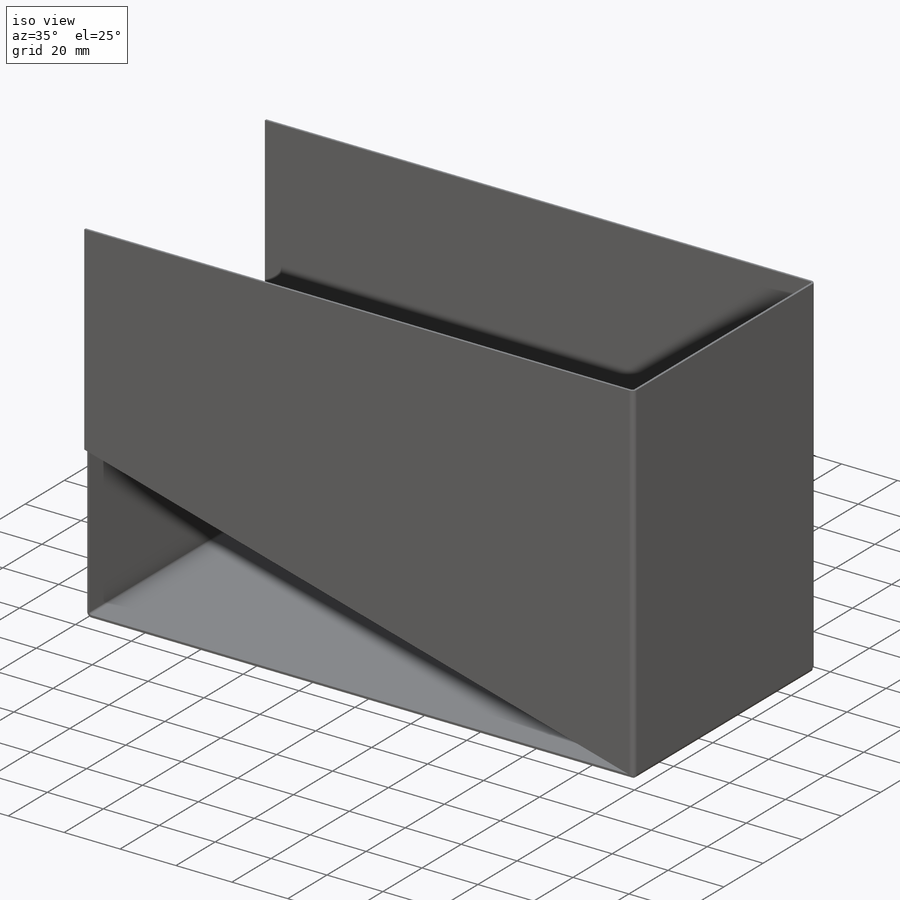
[diagram: iso view]
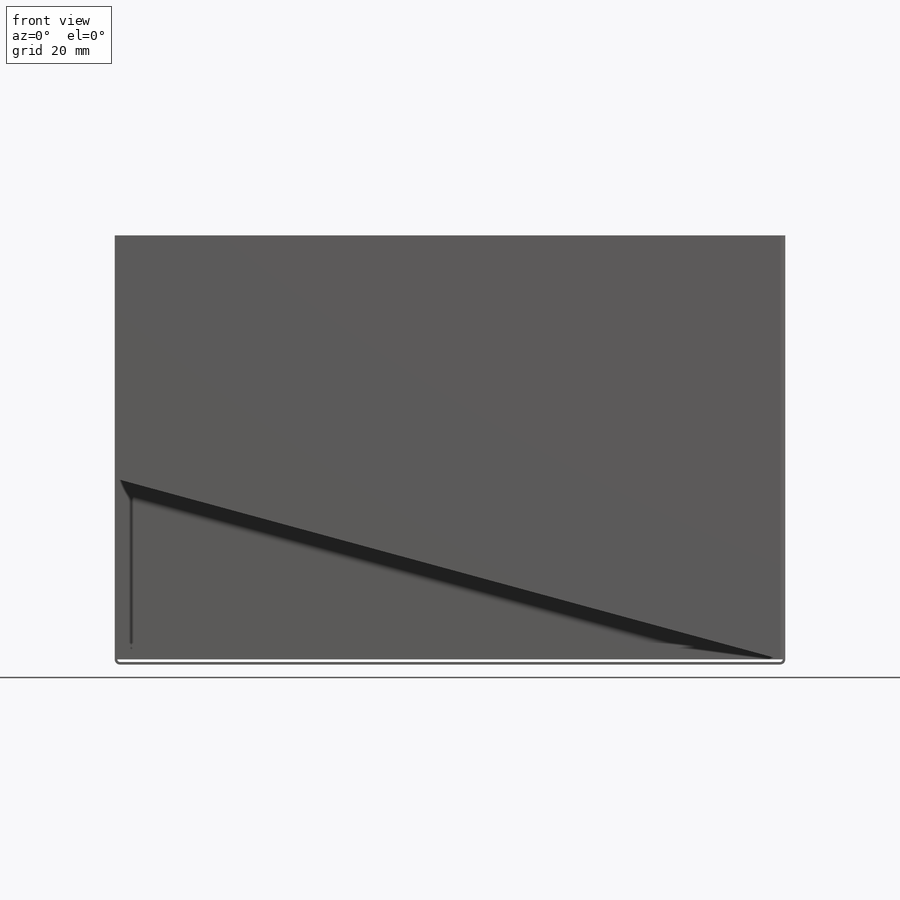
[diagram: front view]
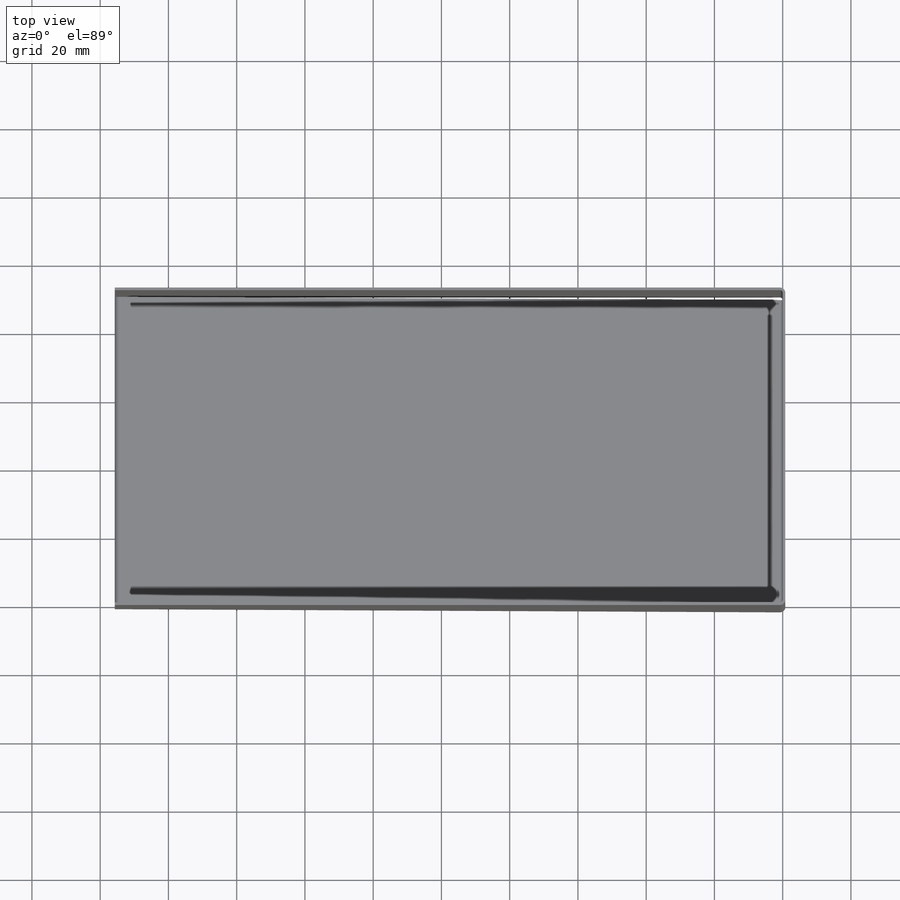
[diagram: top view]
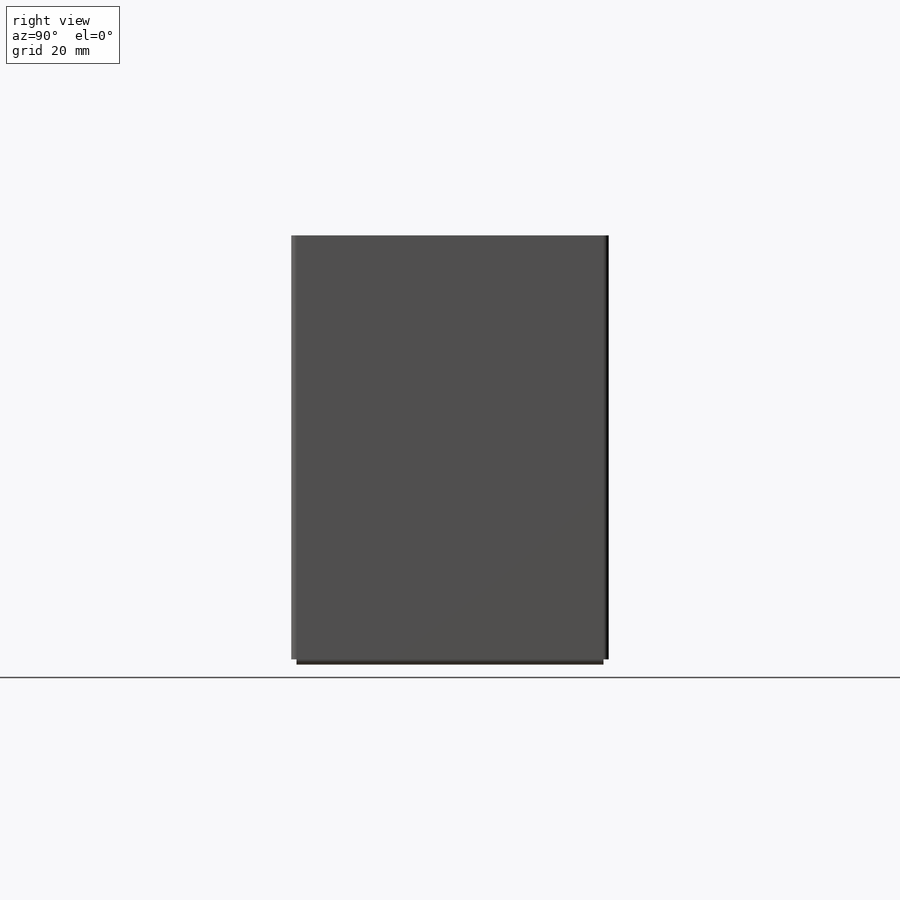
[diagram: right view]
SOLIDWORKS PART (.sldprt)
format: sldprt  version: not decoded by parser v0  size: 709,120 bytes
history: native  units: mm
features: sketch x23, sheet_metal_op x12, extrude x6, material x1, cut_extrude x1 + 20 further entries (+12 scaffold rows collapsed; 7 parser-record rows omitted)
feature tree (82):
  scaffold x12  (default folders/planes/origin — collapsed)
  material  "Plain Carbon Steel"
  sketch  "Sketch3"  dims[c1.D1=~64.683525mm c1.D2=~133.171963mm c2.D1=195.0mm c2.D2=90.0mm c3.D1=0.762mm c3.D2=0.389 c3.D3=1.1938mm c3.D6=500.0mm]
  sheet_metal_op  "Base-Flange1"
  sketch  "Sketch10"  dims[c1.D1=0.762mm c1.D4=90.0deg c1.D5=1.0 c1.D8=0.38mm c1.D9=0.38mm c2.D1=0.762mm c2.D2=500.0mm c2.D3=0.0mm c2.D6=10.0mm c2.D7=55.0mm c2.Edge-Flange2=0.0]
  sketch  "Sketch13"
  sheet_metal_op  "EdgeBend2"  Edge-Flange3=0
  sketch  "Sketch16"
  sheet_metal_op  "EdgeBend3"  Edge-Flange6=0
  sketch  "Sketch25"
  sheet_metal_op  "EdgeBend6"  Edge-Flange7=0
  sketch  "Sketch28"
  sheet_metal_op  "EdgeBend7"
  sketch  "Sketch29"  dims[D1=53.0mm D2=199.998mm]
  cut_extrude  "Cut-Extrude1"  [1 undecoded]
  sketch  "Bend-Lines1"
  sketch  "Bounding-Box1"
  sheet_metal_op  "Sheet-Metal(2)"
  "Flat-Pattern(2)"
  sketch  "Bend-Lines2"
  sketch  "Bounding-Box2"
  parser-record x7  (decoder bookkeeping rows leaked as tree rows — omitted from the tree; the rows remain in map.json)
  extrude  "Sheet-Metal(3)"  Depth=0.762mm
  sheet_metal_op  "Flat-Pattern(2)"
  sketch  "Bend-Lines2"
  sketch  "Bounding-Box2"
  extrude  "Sheet-Metal(4)"  Depth=0.762mm
  sheet_metal_op  "Flat-Pattern(2)"
  sketch  "Bend-Lines2"
  sketch  "Bounding-Box2"
  "Flatten-<EdgeBend1>1"
  "Flatten-<EdgeBend2>1"
  extrude  "Sheet-Metal(5)"  Depth=0.762mm
  sheet_metal_op  "Flat-Pattern(2)"
  sketch  "Bend-Lines2"
  sketch  "Bounding-Box2"
  "Flatten-<EdgeBend1>1"
  "Flatten-<EdgeBend2>1"
  "Flatten-<EdgeBend3>1"
  extrude  "Sheet-Metal(8)"  Depth=0.762mm
  sheet_metal_op  "Flat-Pattern(2)"
  sketch  "Bend-Lines2"
  sketch  "Bounding-Box2"
  "Flatten-<EdgeBend1>1"
  "Flatten-<EdgeBend2>1"
  "Flatten-<EdgeBend3>1"
  "Flatten-<EdgeBend6>1"
  extrude  "Sheet-Metal(9)"  Depth=0.762mm
  sheet_metal_op  "Flat-Pattern(2)"
  sketch  "Bend-Lines2"
  sketch  "Bounding-Box2"
  "Flatten-<EdgeBend1>1"
  "Flatten-<EdgeBend2>1"
  "Flatten-<EdgeBend3>1"
  "Flatten-<EdgeBend6>1"
  "Flatten-<EdgeBend7>1"
  extrude  "Sheet-Metal(10)"  Depth=0.762mm
  sheet_metal_op  "Flat-Pattern(2)"
  sketch  "Bend-Lines2"
  sketch  "Bounding-Box2"
  "Flatten-<EdgeBend1>1"
  "Flatten-<EdgeBend2>1"
  "Flatten-<EdgeBend3>1"
  "Flatten-<EdgeBend6>1"
  "Flatten-<EdgeBend7>1"
decode coverage: 12 of 42 modeling features carry decoded parameters; 20 rows unclassified (native names shown)
note: ~ marks probable driven/reference dimensions
note: 1 parameter value undecoded
note: suppression state not decoded; provenance and decode notes live in map.json
